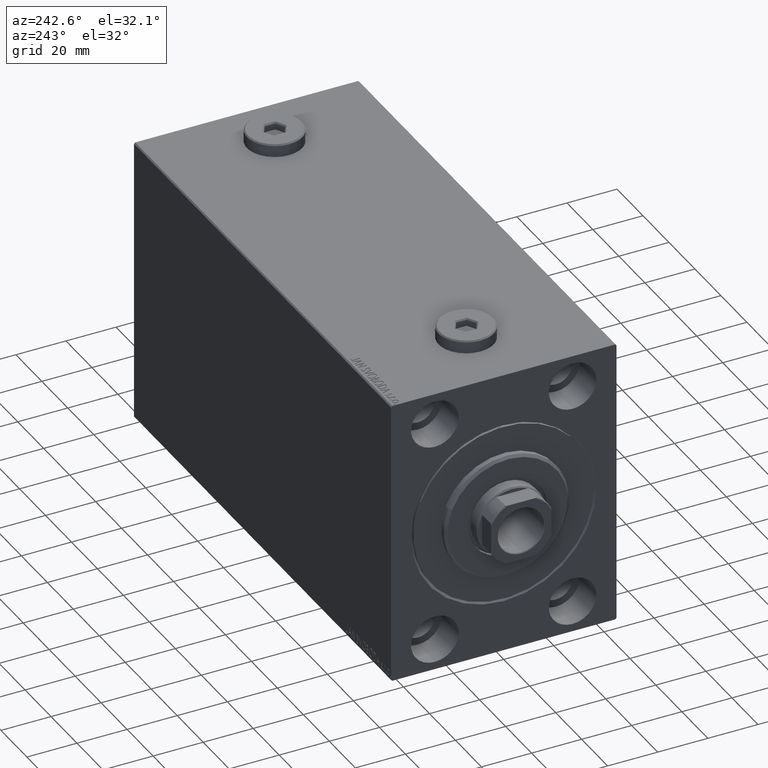
[diagram: clean part render]
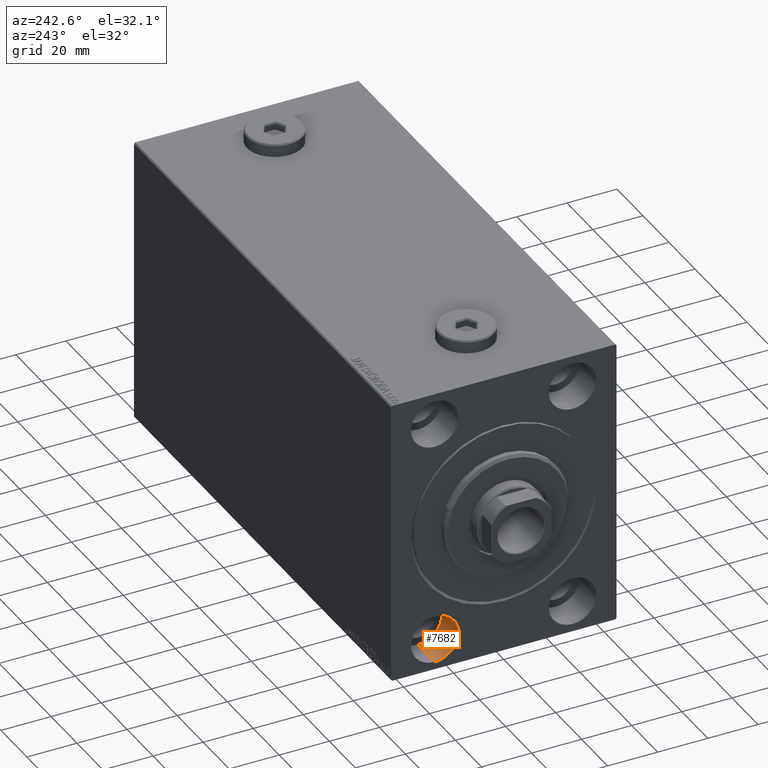
[diagram: same view with one face highlighted and labeled with its STEP entity id]
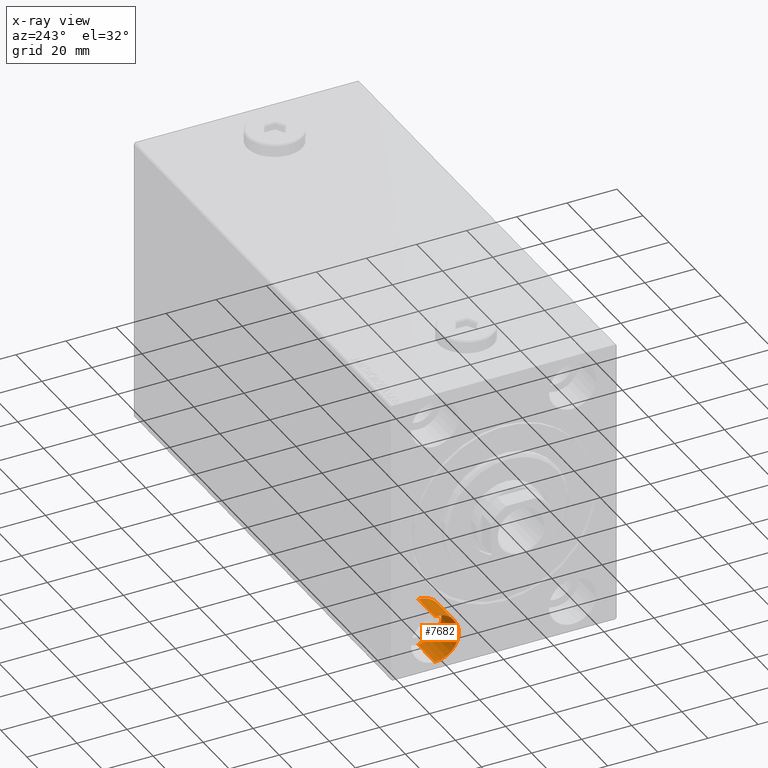
[diagram: x-ray of the same camera — body ghosted, the highlighted face saturated]
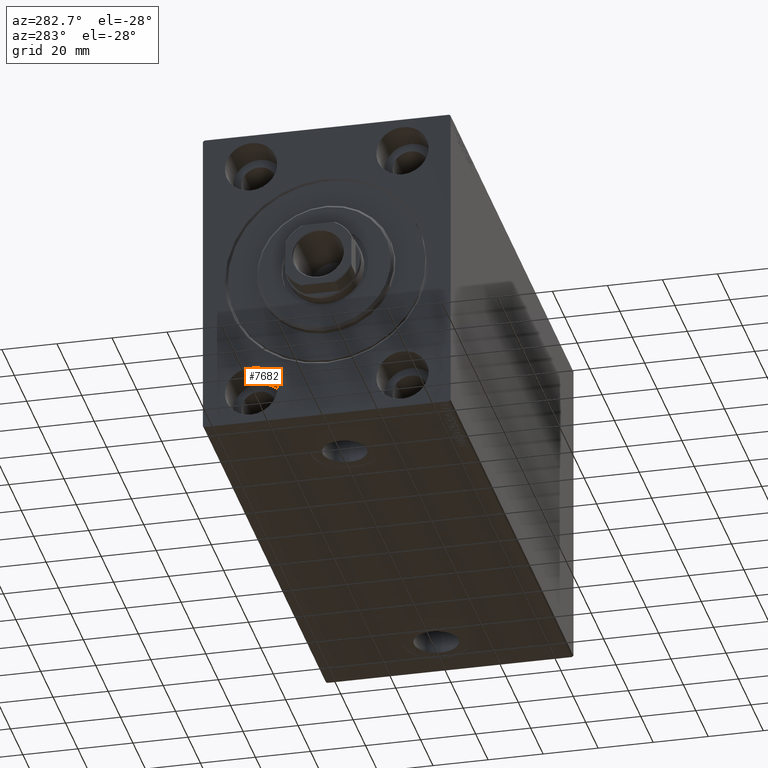
[diagram: same view with one face highlighted and labeled with its STEP entity id]
A machine part, auxiliary view. The second image highlights one B-rep face of the part: STEP entity #7682.
The next image is the same camera in x-ray: the body ghosted, the highlighted face saturated — about 0% of this face is hidden behind the body in this view.
A second angle (auxiliary view) of the same face is appended — the face is thin or edge-on in the first view.
In plain terms, the highlighted cylindrical surface (edge-blend (fillet) strip) has radius 9.5 mm, axis along (-1, -0, -0).
Its self-contained STEP definition (entity closure, byte-faithful):
#313 = AXIS2_PLACEMENT_3D ( 'NONE', #40171, #11770, #22765 ) ;
#1713 = CARTESIAN_POINT ( 'NONE',  ( 0.000000000000000000, 27.49999999999998934, -44.99999999999998579 ) ) ;
#3060 = DIRECTION ( 'NONE',  ( -1.000000000000000000, -0.000000000000000000, -0.000000000000000000 ) ) ;
#3482 = CARTESIAN_POINT ( 'NONE',  ( 0.000000000000000000, 27.49999999999998934, -54.49999999999998579 ) ) ;
#5075 = VERTEX_POINT ( 'NONE', #26121 ) ;
#6873 = EDGE_CURVE ( 'NONE', #17343, #44405, #29597, .T. ) ;
#7682 = ADVANCED_FACE ( 'NONE', ( #13386 ), #27366, .F. ) ;
#9629 = VERTEX_POINT ( 'NONE', #3482 ) ;
#10403 = CARTESIAN_POINT ( 'NONE',  ( 13.00000000000000000, 27.49999999999998934, -44.99999999999998579 ) ) ;
#10476 = ORIENTED_EDGE ( 'NONE', *, *, #26838, .T. ) ;
#11141 = ORIENTED_EDGE ( 'NONE', *, *, #30050, .F. ) ;
#11770 = DIRECTION ( 'NONE',  ( -1.000000000000000000, 0.000000000000000000, 0.000000000000000000 ) ) ;
#12173 = CARTESIAN_POINT ( 'NONE',  ( 13.00000000000000000, 27.49999999999998934, -54.49999999999998579 ) ) ;
#13386 = FACE_OUTER_BOUND ( 'NONE', #37668, .T. ) ;
#14060 = EDGE_CURVE ( 'NONE', #9629, #5075, #42814, .T. ) ;
#14846 = CARTESIAN_POINT ( 'NONE',  ( 13.00000000000000000, 27.49999999999998934, -35.49999999999998579 ) ) ;
#15247 = VECTOR ( 'NONE', #15685, 1000.000000000000000 ) ;
#15685 = DIRECTION ( 'NONE',  ( -1.000000000000000000, -0.000000000000000000, -0.000000000000000000 ) ) ;
#17343 = VERTEX_POINT ( 'NONE', #12173 ) ;
#17799 = LINE ( 'NONE', #21244, #24691 ) ;
#21244 = CARTESIAN_POINT ( 'NONE',  ( 13.00000000000000000, 27.49999999999998934, -54.49999999999998579 ) ) ;
#22765 = DIRECTION ( 'NONE',  ( 0.000000000000000000, 0.000000000000000000, 1.000000000000000000 ) ) ;
#23058 = AXIS2_PLACEMENT_3D ( 'NONE', #1713, #43425, #39993 ) ;
#23934 = DIRECTION ( 'NONE',  ( 0.000000000000000000, 0.000000000000000000, 1.000000000000000000 ) ) ;
#24691 = VECTOR ( 'NONE', #28797, 1000.000000000000000 ) ;
#26121 = CARTESIAN_POINT ( 'NONE',  ( 0.000000000000000000, 27.49999999999998934, -35.49999999999998579 ) ) ;
#26677 = LINE ( 'NONE', #37227, #15247 ) ;
#26838 = EDGE_CURVE ( 'NONE', #17343, #9629, #17799, .T. ) ;
#27366 = CYLINDRICAL_SURFACE ( 'NONE', #41303, 9.500000000000001776 ) ;
#28797 = DIRECTION ( 'NONE',  ( -1.000000000000000000, -0.000000000000000000, -0.000000000000000000 ) ) ;
#29597 = CIRCLE ( 'NONE', #313, 9.500000000000001776 ) ;
#30050 = EDGE_CURVE ( 'NONE', #44405, #5075, #26677, .T. ) ;
#34294 = ORIENTED_EDGE ( 'NONE', *, *, #14060, .T. ) ;
#36240 = ORIENTED_EDGE ( 'NONE', *, *, #6873, .F. ) ;
#37227 = CARTESIAN_POINT ( 'NONE',  ( 13.00000000000000000, 27.49999999999998934, -35.49999999999998579 ) ) ;
#37668 = EDGE_LOOP ( 'NONE', ( #36240, #10476, #34294, #11141 ) ) ;
#39993 = DIRECTION ( 'NONE',  ( 0.000000000000000000, 0.000000000000000000, 1.000000000000000000 ) ) ;
#40171 = CARTESIAN_POINT ( 'NONE',  ( 13.00000000000000000, 27.49999999999998934, -44.99999999999998579 ) ) ;
#41303 = AXIS2_PLACEMENT_3D ( 'NONE', #10403, #3060, #23934 ) ;
#42814 = CIRCLE ( 'NONE', #23058, 9.500000000000001776 ) ;
#43425 = DIRECTION ( 'NONE',  ( -1.000000000000000000, 0.000000000000000000, 0.000000000000000000 ) ) ;
#44405 = VERTEX_POINT ( 'NONE', #14846 ) ;